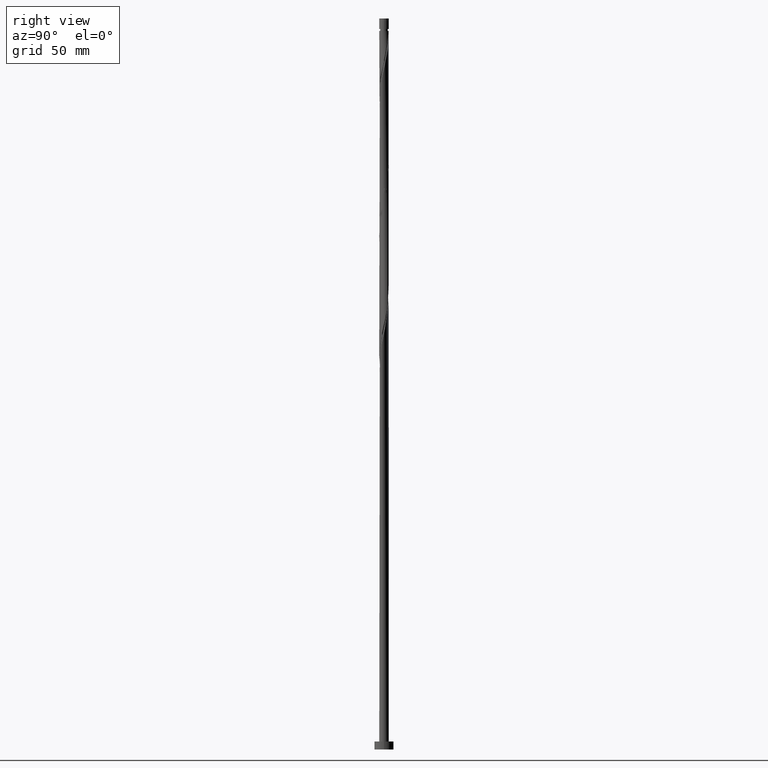
[diagram: clean part render]
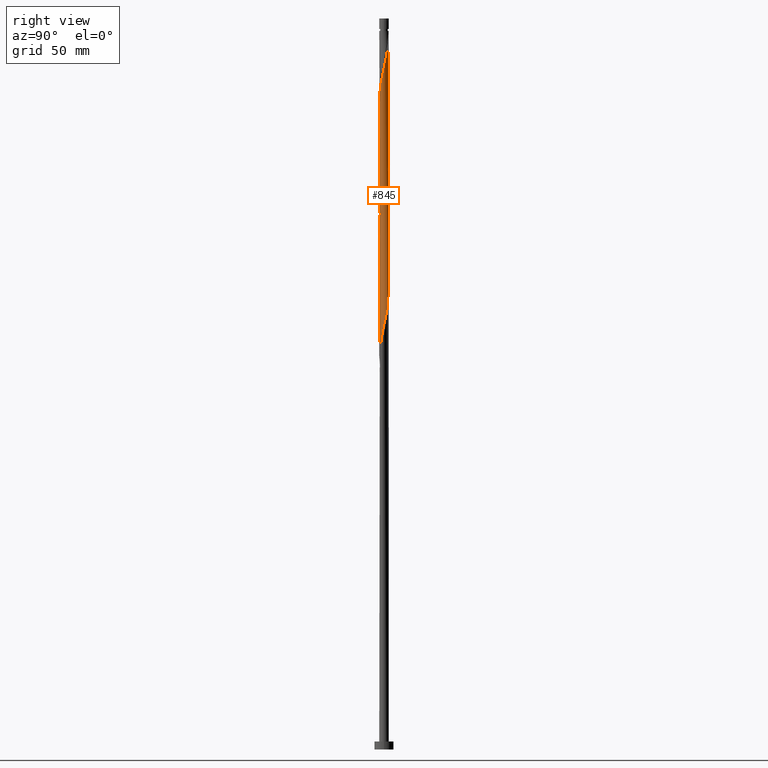
[diagram: same view with one face highlighted and labeled with its STEP entity id]
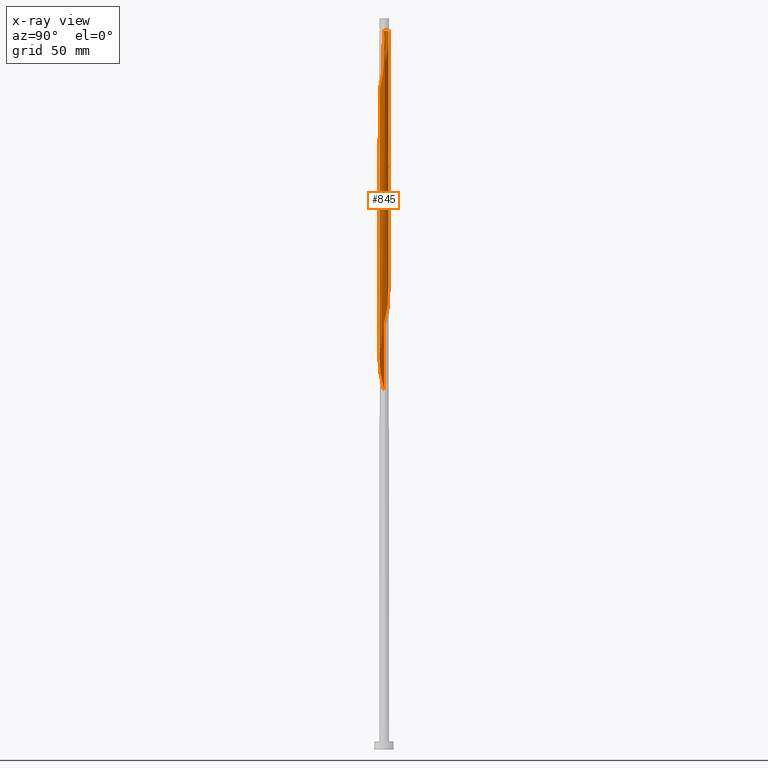
[diagram: x-ray of the same camera — body ghosted, the highlighted face saturated]
A machine part, right view. The second image highlights one B-rep face of the part: STEP entity #845.
The next image is the same camera in x-ray: the body ghosted, the highlighted face saturated — about 0% of this face is hidden behind the body in this view.
In plain terms, the highlighted cylindrical surface (bore or boss wall) has radius 3 mm, axis along (-0, -0, -1).
Its self-contained STEP definition (entity closure, byte-faithful):
#1 = CARTESIAN_POINT ( 'NONE',  ( 2.999999999999999556, 1.352208623053709741E-15, 351.2067037195775470 ) ) ;
#5 = CARTESIAN_POINT ( 'NONE',  ( 0.5969924622639761758, 2.939999999999998614, 369.3831734082475577 ) ) ;
#14 = CARTESIAN_POINT ( 'NONE',  ( -2.767041272681221020, -1.159086966227606208, 392.8206734082475577 ) ) ;
#23 = CARTESIAN_POINT ( 'NONE',  ( 1.921660071883963150, 2.322612231291373952, 362.8727567415808153 ) ) ;
#31 = CARTESIAN_POINT ( 'NONE',  ( -2.322612231291373952, 1.921660071883963150, 383.7060900749141297 ) ) ;
#37 = CARTESIAN_POINT ( 'NONE',  ( -2.664207629581484049, -1.410426430302970990, 315.9977567415808721 ) ) ;
#39 = CARTESIAN_POINT ( 'NONE',  ( 2.337855080563639554, -1.903086606305708139, 420.1644234082475577 ) ) ;
#41 = CARTESIAN_POINT ( 'NONE',  ( -2.652881170764461949, 1.431616744321172030, 386.3102567415808153 ) ) ;
#47 = CARTESIAN_POINT ( 'NONE',  ( -2.112849418798539158, 2.129757576223799909, 299.0706734082474441 ) ) ;
#55 = CARTESIAN_POINT ( 'NONE',  ( -0.01195587277277104614, -2.999976176089776736, 330.3206734082474441 ) ) ;
#66 = CARTESIAN_POINT ( 'NONE',  ( 0.8635643575599494248, -2.888176173499366506, 334.2269234082476146 ) ) ;
#83 = VERTEX_POINT ( 'NONE', #1685 ) ;
#116 = CARTESIAN_POINT ( 'NONE',  ( -0.01195587277277104614, -2.999976176089776736, 246.9873400749141581 ) ) ;
#138 = EDGE_CURVE ( 'NONE', #1658, #1646, #1227, .T. ) ;
#162 = CARTESIAN_POINT ( 'NONE',  ( -3.000000000000003553, 1.916017180564031245E-15, 387.5596430969172275 ) ) ;
#169 = CARTESIAN_POINT ( 'NONE',  ( 2.939999999999998614, -0.5969924622639760647, 348.5498400749141865 ) ) ;
#172 = CARTESIAN_POINT ( 'NONE',  ( -2.112849418798543599, -2.129757576223802129, 398.0290067415808721 ) ) ;
#173 = CARTESIAN_POINT ( 'NONE',  ( -1.903086606305704143, 2.337855080563636889, 381.1019234082476146 ) ) ;
#180 = CARTESIAN_POINT ( 'NONE',  ( 2.501031355072563578, -1.656756518304341341, 421.4665067415808153 ) ) ;
#185 = CARTESIAN_POINT ( 'NONE',  ( -2.322612231291373952, 1.921660071883963150, 300.3727567415807584 ) ) ;
#188 = CARTESIAN_POINT ( 'NONE',  ( -2.767041272681216135, 1.159086966227605542, 387.6123400749140728 ) ) ;
#192 = CARTESIAN_POINT ( 'NONE',  ( -0.5735401742041599249, 2.944664950138445647, 291.2581734082475009 ) ) ;
#201 = CARTESIAN_POINT ( 'NONE',  ( -1.676638408102567812, -2.487746701027917950, 322.5081734082475009 ) ) ;
#202 = CARTESIAN_POINT ( 'NONE',  ( 2.112849418798544043, 2.129757576223801685, 439.6956734082475009 ) ) ;
#209 = CARTESIAN_POINT ( 'NONE',  ( -1.903086606305704143, 2.337855080563636889, 297.7685900749142434 ) ) ;
#210 = CARTESIAN_POINT ( 'NONE',  ( 1.656756518304341341, 2.501031355072563578, 442.2998400749141865 ) ) ;
#222 = CARTESIAN_POINT ( 'NONE',  ( 2.501031355072560469, 1.656756518304337789, 275.6331734082474441 ) ) ;
#240 = ORIENTED_EDGE ( 'NONE', *, *, #1134, .T. ) ;
#241 = CARTESIAN_POINT ( 'NONE',  ( 2.487746701027917062, -1.676638408102569366, 260.0081734082475009 ) ) ;
#244 = DIRECTION ( 'NONE',  ( -0.000000000000000000, -0.000000000000000000, -1.000000000000000000 ) ) ;
#263 = VERTEX_POINT ( 'NONE', #907 ) ;
#264 = CARTESIAN_POINT ( 'NONE',  ( 2.322612231291373952, -1.921660071883963150, 258.7060900749142434 ) ) ;
#274 = CARTESIAN_POINT ( 'NONE',  ( -2.944664950138445647, -0.5735401742041597029, 228.7581734082474725 ) ) ;
#290 =( BOUNDED_CURVE ( )  B_SPLINE_CURVE ( 2, ( #621, #345, #1681, #1718, #1232, #1534, #188, #41, #1108, #31, #1571, #173, #312, #1240, #636, #1847, #1867, #921, #491, #762, #5, #1544, #612, #1251, #1552, #23, #1097, #1710, #470, #1077, #1690, #1223, #940, #1562, #319 ),
 .UNSPECIFIED., .F., .T. ) 
 B_SPLINE_CURVE_WITH_KNOTS ( ( 3, 2, 2, 2, 2, 2, 2, 2, 2, 2, 2, 2, 2, 2, 2, 2, 2, 3 ),
 ( 0.4295286902180871502, 0.4296875000000000000, 0.4375000000000000000, 0.4453125000000000000, 0.4531250000000000000, 0.4609375000000000000, 0.4687500000000000000, 0.4765625000000000000, 0.4843750000000000000, 0.4921875000000000000, 0.5000000000000000000, 0.5078125000000000000, 0.5156250000000000000, 0.5234375000000000000, 0.5312500000000000000, 0.5390625000000000000, 0.5468750000000000000, 0.5545286902180871502 ),
 .UNSPECIFIED. ) 
 CURVE ( )  GEOMETRIC_REPRESENTATION_ITEM ( )  RATIONAL_B_SPLINE_CURVE ( ( 0.9089165573359696548, 0.9090019243628744139, 0.9090909090909662371, 0.9047133878838722332, 0.9090909090909662371, 0.9047133878838722332, 0.9090909090909662371, 0.9047133878838722332, 0.9090909090909662371, 0.9047133878838722332, 0.9090909090909662371, 0.9047133878838722332, 0.9090909090909662371, 0.9047133878838722332, 0.9090909090909662371, 0.9047133878838722332, 0.9090909090909662371, 0.9047133878838722332, 0.9090909090909662371, 0.9047133878838722332, 0.9090909090909662371, 0.9047133878838722332, 0.9090909090909662371, 0.9047133878838722332, 0.9090909090909662371, 0.9047133878838722332, 0.9090909090909662371, 0.9047133878838722332, 0.9090909090909662371, 0.9047133878838722332, 0.9090909090909662371, 0.9047133878838722332, 0.9090909090909662371, 0.9048023726119640564, 0.9089165573359696548 ) ) 
 REPRESENTATION_ITEM ( '' )  );
#310 = CARTESIAN_POINT ( 'NONE',  ( -2.322612231291378393, -1.921660071883964704, 396.7269234082475009 ) ) ;
#312 = CARTESIAN_POINT ( 'NONE',  ( -1.656756518304337789, 2.501031355072560469, 379.7998400749140728 ) ) ;
#316 = DIRECTION ( 'NONE',  ( -0.000000000000000000, -0.000000000000000000, -1.000000000000000000 ) ) ;
#319 = CARTESIAN_POINT ( 'NONE',  ( 2.999999999999999556, 1.352208623053709741E-15, 351.2067037195775470 ) ) ;
#327 = CARTESIAN_POINT ( 'NONE',  ( 1.431616744321172696, -2.652881170764466390, 414.9560900749141297 ) ) ;
#335 = CARTESIAN_POINT ( 'NONE',  ( 2.999976176089781621, 0.01195587277276968438, 429.2790067415807584 ) ) ;
#342 = CARTESIAN_POINT ( 'NONE',  ( -2.501031355072560469, -1.656756518304337789, 317.2998400749142434 ) ) ;
#343 = CARTESIAN_POINT ( 'NONE',  ( 0.3074277363939120211, -2.998798625402031348, 409.7477567415808153 ) ) ;
#345 = CARTESIAN_POINT ( 'NONE',  ( -2.999999999999999556, 0.005977960122782757964, 392.8470168317271032 ) ) ;
#353 = CARTESIAN_POINT ( 'NONE',  ( 2.112849418798539158, -2.129757576223799465, 340.7373400749142434 ) ) ;
#361 = CARTESIAN_POINT ( 'NONE',  ( 1.410426430302970990, -2.664207629581484049, 336.8310900749141865 ) ) ;
#363 = LINE ( 'NONE', #1156, #1962 ) ;
#367 = VERTEX_POINT ( 'NONE', #926 ) ;
#371 = CARTESIAN_POINT ( 'NONE',  ( 2.337855080563637777, 1.903086606305703032, 276.9352567415808721 ) ) ;
#379 = CARTESIAN_POINT ( 'NONE',  ( -1.921660071883963150, -2.322612231291373952, 321.2060900749141297 ) ) ;
#381 = CARTESIAN_POINT ( 'NONE',  ( -0.5969924622640679912, 2.940000000000801084, 452.7165067415808153 ) ) ;
#402 = CARTESIAN_POINT ( 'NONE',  ( 0.5735401742041595918, -2.944664950138446091, 249.5915067415808153 ) ) ;
#411 = LINE ( 'NONE', #732, #450 ) ;
#425 = CARTESIAN_POINT ( 'NONE',  ( -2.501031355072560469, -1.656756518304337789, 233.9665067415808153 ) ) ;
#432 = EDGE_CURVE ( 'NONE', #1956, #367, #1303, .T. ) ;
#450 = VECTOR ( 'NONE', #1347, 1000.000000000000000 ) ;
#468 = CARTESIAN_POINT ( 'NONE',  ( -2.487746701027922391, -1.676638408102569366, 395.4248400749142434 ) ) ;
#470 = CARTESIAN_POINT ( 'NONE',  ( 2.501031355072560469, 1.656756518304337789, 358.9665067415808153 ) ) ;
#477 = CARTESIAN_POINT ( 'NONE',  ( 3.001153726777531450, -0.2835159908483711466, 427.9769234082475009 ) ) ;
#491 = CARTESIAN_POINT ( 'NONE',  ( 0.01195587277277136359, 2.999976176089776736, 371.9873400749141865 ) ) ;
#498 = CARTESIAN_POINT ( 'NONE',  ( -2.998798625402027351, 0.3074277363939126317, 308.1852567415808153 ) ) ;
#500 = CARTESIAN_POINT ( 'NONE',  ( -2.940000000000004388, -0.5969924622639758427, 390.2165067415808153 ) ) ;
#507 = CARTESIAN_POINT ( 'NONE',  ( 1.159086966227606430, 2.767041272681216135, 283.4456734082474441 ) ) ;
#518 = CARTESIAN_POINT ( 'NONE',  ( -2.337855080563637333, -1.903086606305704365, 318.6019234082475577 ) ) ;
#526 = CARTESIAN_POINT ( 'NONE',  ( 1.431616744321172474, 2.652881170764461505, 282.1435900749141297 ) ) ;
#527 = CARTESIAN_POINT ( 'NONE',  ( -0.3074277363939257324, 2.998798625402031792, 451.4144234082475577 ) ) ;
#533 = CARTESIAN_POINT ( 'NONE',  ( 0.8865571881340380545, 2.881201374597971654, 284.7477567415808153 ) ) ;
#534 = CARTESIAN_POINT ( 'NONE',  ( 0.5735401742041633666, 2.944664950138450976, 447.5081734082476146 ) ) ;
#554 = CARTESIAN_POINT ( 'NONE',  ( 1.136995393931459208, -2.776191901540425278, 252.1956734082475009 ) ) ;
#575 = CARTESIAN_POINT ( 'NONE',  ( -1.431616744321172030, -2.652881170764461505, 240.4769234082474725 ) ) ;
#596 = VERTEX_POINT ( 'NONE', #1371 ) ;
#609 = CARTESIAN_POINT ( 'NONE',  ( 2.881201374597976095, 0.8865571881340377214, 433.1852567415807584 ) ) ;
#612 = CARTESIAN_POINT ( 'NONE',  ( 1.159086966227606430, 2.767041272681216135, 366.7790067415808721 ) ) ;
#619 = CARTESIAN_POINT ( 'NONE',  ( 1.159086966227606652, -2.767041272681221020, 413.6540067415809290 ) ) ;
#621 = CARTESIAN_POINT ( 'NONE',  ( -2.999999999999999556, -1.053063917333350848E-15, 392.8733703862443463 ) ) ;
#627 = CARTESIAN_POINT ( 'NONE',  ( -0.2835159908483709801, -3.001153726777531450, 407.1435900749141865 ) ) ;
#635 = CARTESIAN_POINT ( 'NONE',  ( 2.776191901540429718, -1.136995393931462539, 424.0706734082475577 ) ) ;
#636 = CARTESIAN_POINT ( 'NONE',  ( -1.136995393931460097, 2.776191901540424833, 377.1956734082475009 ) ) ;
#645 = CARTESIAN_POINT ( 'NONE',  ( 2.664207629581486714, -1.410426430302975653, 422.7685900749140728 ) ) ;
#648 = DIRECTION ( 'NONE',  ( -0.000000000000000000, -0.000000000000000000, -1.000000000000000000 ) ) ;
#654 = CARTESIAN_POINT ( 'NONE',  ( 2.322612231291373952, -1.921660071883963150, 342.0394234082475009 ) ) ;
#663 = CARTESIAN_POINT ( 'NONE',  ( -2.999976176089776736, 0.01195587277277147288, 309.4873400749141297 ) ) ;
#674 = CARTESIAN_POINT ( 'NONE',  ( 0.5735401742041595918, -2.944664950138446091, 332.9248400749141865 ) ) ;
#685 = CARTESIAN_POINT ( 'NONE',  ( 2.888176173499366506, 0.8635643575599494248, 271.7269234082475009 ) ) ;
#703 = AXIS2_PLACEMENT_3D ( 'NONE', #781, #648, #1408 ) ;
#726 = CARTESIAN_POINT ( 'NONE',  ( -0.3074277363939126873, -2.998798625402027351, 245.6852567415807584 ) ) ;
#728 = CARTESIAN_POINT ( 'NONE',  ( -2.999999999999957367, 0.000000000000000000, 452.7165067415808153 ) ) ;
#732 = CARTESIAN_POINT ( 'NONE',  ( -3.000000000000000444, 0.000000000000000000, 460.5299999999999727 ) ) ;
#736 = CARTESIAN_POINT ( 'NONE',  ( -1.159086966227606208, -2.767041272681216135, 241.7790067415808153 ) ) ;
#748 = CARTESIAN_POINT ( 'NONE',  ( -3.000000000000000444, 0.000000000000000000, 460.5299999999999727 ) ) ;
#752 = ORIENTED_EDGE ( 'NONE', *, *, #138, .F. ) ;
#761 = EDGE_CURVE ( 'NONE', #1646, #1956, #290, .T. ) ;
#762 = CARTESIAN_POINT ( 'NONE',  ( 0.3074277363939126873, 2.998798625402027351, 370.6852567415808153 ) ) ;
#766 = CARTESIAN_POINT ( 'NONE',  ( 2.999976176089776736, -0.01195587277277115543, 351.1540067415806448 ) ) ;
#769 = CARTESIAN_POINT ( 'NONE',  ( -2.881201374597975651, -0.8865571881340392757, 391.5185900749141865 ) ) ;
#780 = CARTESIAN_POINT ( 'NONE',  ( -1.136995393931462539, -2.776191901540429718, 403.2373400749140728 ) ) ;
#781 = CARTESIAN_POINT ( 'NONE',  ( 0.000000000000000000, 0.000000000000000000, 460.5299999999999727 ) ) ;
#784 = CARTESIAN_POINT ( 'NONE',  ( 2.881201374597971654, -0.8865571881340379434, 347.2477567415808721 ) ) ;
#785 = EDGE_CURVE ( 'NONE', #1658, #263, #1726, .T. ) ;
#790 = DIRECTION ( 'NONE',  ( -0.000000000000000000, -0.000000000000000000, -1.000000000000000000 ) ) ;
#795 = CARTESIAN_POINT ( 'NONE',  ( -0.2835159908483700919, 3.001153726777527453, 289.9560900749141865 ) ) ;
#797 = CARTESIAN_POINT ( 'NONE',  ( -3.000000000000003997, -0.005977960122773548317, 387.5859966514345274 ) ) ;
#805 = CARTESIAN_POINT ( 'NONE',  ( 0.01195587277277136359, 2.999976176089776736, 288.6540067415808153 ) ) ;
#806 = CARTESIAN_POINT ( 'NONE',  ( 1.921660071883964704, -2.322612231291378393, 417.5602567415808153 ) ) ;
#813 = CARTESIAN_POINT ( 'NONE',  ( 1.136995393931459208, -2.776191901540425278, 335.5290067415808153 ) ) ;
#827 = CARTESIAN_POINT ( 'NONE',  ( 2.487746701027917062, -1.676638408102569366, 343.3415067415808153 ) ) ;
#837 = CARTESIAN_POINT ( 'NONE',  ( 2.664207629581483605, 1.410426430302971657, 274.3310900749142434 ) ) ;
#845 = ADVANCED_FACE ( 'NONE', ( #1420 ), #1837, .T. ) ;
#846 = CARTESIAN_POINT ( 'NONE',  ( -2.337855080563637333, -1.903086606305704365, 235.2685900749141581 ) ) ;
#849 = CARTESIAN_POINT ( 'NONE',  ( 1.136995393931462539, 2.776191901540429718, 444.9040067415808721 ) ) ;
#857 = CARTESIAN_POINT ( 'NONE',  ( 1.903086606305703032, -2.337855080563637777, 256.1019234082474441 ) ) ;
#880 = CARTESIAN_POINT ( 'NONE',  ( 2.939999999999998614, -0.5969924622639760647, 265.2165067415808153 ) ) ;
#891 = CARTESIAN_POINT ( 'NONE',  ( -3.000000000000000444, -0.2894394447869482745, 227.4826838249937566 ) ) ;
#907 = CARTESIAN_POINT ( 'NONE',  ( -0.5969924622640679912, 2.940000000000801084, 452.7165067415808153 ) ) ;
#921 = CARTESIAN_POINT ( 'NONE',  ( -0.2835159908483700919, 3.001153726777527453, 373.2894234082475577 ) ) ;
#926 = CARTESIAN_POINT ( 'NONE',  ( -2.999999999999999556, -1.053063917333350848E-15, 226.2067037195776891 ) ) ;
#930 = VECTOR ( 'NONE', #316, 1000.000000000000000 ) ;
#931 = CARTESIAN_POINT ( 'NONE',  ( 0.000000000000000000, 0.000000000000000000, 452.7165067415808153 ) ) ;
#939 = CARTESIAN_POINT ( 'NONE',  ( -2.652881170764465946, -1.431616744321172918, 394.1227567415808721 ) ) ;
#940 = CARTESIAN_POINT ( 'NONE',  ( 2.944664950138445647, 0.5735401742041607021, 353.7581734082474441 ) ) ;
#948 = CARTESIAN_POINT ( 'NONE',  ( 2.940000000000004388, 0.5969924622639755096, 431.8831734082475009 ) ) ;
#953 = CARTESIAN_POINT ( 'NONE',  ( -1.136995393931460097, 2.776191901540424833, 293.8623400749142434 ) ) ;
#955 = CARTESIAN_POINT ( 'NONE',  ( -1.903086606305708139, -2.337855080563639554, 399.3310900749141297 ) ) ;
#964 = CARTESIAN_POINT ( 'NONE',  ( -2.487746701027917950, 1.676638408102567590, 301.6748400749141297 ) ) ;
#973 = CARTESIAN_POINT ( 'NONE',  ( -2.652881170764461949, 1.431616744321172030, 302.9769234082475009 ) ) ;
#980 = CARTESIAN_POINT ( 'NONE',  ( -2.881201374597971210, 0.8865571881340387206, 305.5810900749141297 ) ) ;
#988 = CARTESIAN_POINT ( 'NONE',  ( -2.664207629581484049, -1.410426430302970990, 232.6644234082475577 ) ) ;
#1000 = CARTESIAN_POINT ( 'NONE',  ( -2.999999999999999556, -1.053063917333350651E-15, 226.2067037195776891 ) ) ;
#1011 = CARTESIAN_POINT ( 'NONE',  ( 2.881201374597971654, -0.8865571881340379434, 263.9144234082475009 ) ) ;
#1023 = CARTESIAN_POINT ( 'NONE',  ( 2.999976176089776736, -0.01195587277277115543, 267.8206734082475009 ) ) ;
#1026 = ORIENTED_EDGE ( 'NONE', *, *, #1392, .F. ) ;
#1077 = CARTESIAN_POINT ( 'NONE',  ( 2.664207629581483605, 1.410426430302971657, 357.6644234082475577 ) ) ;
#1085 = CARTESIAN_POINT ( 'NONE',  ( 2.998798625402031348, 0.3074277363939131869, 430.5810900749141297 ) ) ;
#1095 = CARTESIAN_POINT ( 'NONE',  ( -1.656756518304340675, -2.501031355072563578, 400.6331734082475577 ) ) ;
#1097 = CARTESIAN_POINT ( 'NONE',  ( 2.129757576223799465, 2.112849418798539158, 361.5706734082475009 ) ) ;
#1103 = CARTESIAN_POINT ( 'NONE',  ( -1.410426430302971212, 2.664207629581483605, 295.1644234082476146 ) ) ;
#1105 =( BOUNDED_CURVE ( )  B_SPLINE_CURVE ( 2, ( #162, #797, #1716, #1680, #500, #769, #14, #939, #468, #310, #172, #955, #1095, #1708, #780, #1418, #1387, #627, #1407, #343, #1551, #1239, #619, #327, #1231, #806, #1845, #39, #180, #645, #635, #1250, #1855, #477, #335, #1085, #948, #609, #1259, #1569, #1427, #1221, #202, #1912, #210, #1753, #849, #1765, #534, #1449, #1300, #527, #381 ),
 .UNSPECIFIED., .F., .T. ) 
 B_SPLINE_CURVE_WITH_KNOTS ( ( 3, 2, 2, 2, 2, 2, 2, 2, 2, 2, 2, 2, 2, 2, 2, 2, 2, 2, 2, 2, 2, 2, 2, 2, 2, 2, 3 ),
 ( 0.5545286902180869282, 0.5546875000000000000, 0.5625000000000000000, 0.5703125000000000000, 0.5781250000000000000, 0.5859375000000000000, 0.5937500000000001110, 0.6015625000000001110, 0.6093750000000001110, 0.6171875000000001110, 0.6250000000000001110, 0.6328125000000001110, 0.6406250000000001110, 0.6484375000000001110, 0.6562500000000002220, 0.6640625000000002220, 0.6718750000000002220, 0.6796875000000002220, 0.6875000000000002220, 0.6953125000000002220, 0.7031250000000002220, 0.7109375000000002220, 0.7187500000000003331, 0.7265625000000003331, 0.7343750000000003331, 0.7421875000000003331, 0.7500000000000003331 ),
 .UNSPECIFIED. ) 
 CURVE ( )  GEOMETRIC_REPRESENTATION_ITEM ( )  RATIONAL_B_SPLINE_CURVE ( ( 0.9089165573359754280, 0.9090019243628802981, 0.9090909090909722323, 0.9047133878838782284, 0.9090909090909722323, 0.9047133878838782284, 0.9090909090909722323, 0.9047133878838782284, 0.9090909090909722323, 0.9047133878838782284, 0.9090909090909722323, 0.9047133878838782284, 0.9090909090909722323, 0.9047133878838782284, 0.9090909090909722323, 0.9047133878838782284, 0.9090909090909722323, 0.9047133878838782284, 0.9090909090909722323, 0.9047133878838782284, 0.9090909090909722323, 0.9047133878838782284, 0.9090909090909722323, 0.9047133878838782284, 0.9090909090909722323, 0.9047133878838782284, 0.9090909090909722323, 0.9047133878838782284, 0.9090909090909722323, 0.9047133878838782284, 0.9090909090909722323, 0.9047133878838782284, 0.9090909090909722323, 0.9047133878838782284, 0.9090909090909722323, 0.9047133878838782284, 0.9090909090909722323, 0.9047133878838782284, 0.9090909090909722323, 0.9047133878838782284, 0.9090909090909722323, 0.9047133878838782284, 0.9090909090909722323, 0.9047133878838782284, 0.9090909090909722323, 0.9047133878838782284, 0.9090909090909722323, 0.9047133878838782284, 0.9090909090909722323, 0.9047133878838782284, 0.9090909090909722323, 0.9047133878838780063, 0.9090909090909724544 ) ) 
 REPRESENTATION_ITEM ( '' )  );
#1108 = CARTESIAN_POINT ( 'NONE',  ( -2.487746701027917950, 1.676638408102567590, 385.0081734082474441 ) ) ;
#1114 = CARTESIAN_POINT ( 'NONE',  ( -2.129757576223799465, -2.112849418798539158, 319.9040067415809290 ) ) ;
#1123 = CARTESIAN_POINT ( 'NONE',  ( -0.5969924622639757317, -2.939999999999998614, 327.7165067415808153 ) ) ;
#1132 = CARTESIAN_POINT ( 'NONE',  ( 1.921660071883963150, 2.322612231291373952, 279.5394234082475009 ) ) ;
#1134 = EDGE_CURVE ( 'NONE', #83, #367, #411, .T. ) ;
#1156 = CARTESIAN_POINT ( 'NONE',  ( 3.000000000000000444, 3.673940397442060361E-16, 460.5299999999999727 ) ) ;
#1175 = ORIENTED_EDGE ( 'NONE', *, *, #761, .F. ) ;
#1176 = CARTESIAN_POINT ( 'NONE',  ( 2.767041272681216135, -1.159086966227606208, 262.6123400749141865 ) ) ;
#1187 = CARTESIAN_POINT ( 'NONE',  ( 1.656756518304337789, -2.501031355072560913, 254.7998400749141865 ) ) ;
#1197 = ORIENTED_EDGE ( 'NONE', *, *, #1392, .T. ) ;
#1216 = CARTESIAN_POINT ( 'NONE',  ( 2.999999999999999556, -0.005977960122782449183, 351.1803501650603039 ) ) ;
#1221 = CARTESIAN_POINT ( 'NONE',  ( 2.322612231291378393, 1.921660071883964704, 438.3935900749141297 ) ) ;
#1223 = CARTESIAN_POINT ( 'NONE',  ( 2.888176173499366506, 0.8635643575599494248, 355.0602567415809290 ) ) ;
#1227 = LINE ( 'NONE', #748, #930 ) ;
#1231 = CARTESIAN_POINT ( 'NONE',  ( 1.676638408102569366, -2.487746701027922835, 416.2581734082476146 ) ) ;
#1232 = CARTESIAN_POINT ( 'NONE',  ( -2.939999999999998614, 0.5969924622639757317, 390.2165067415808721 ) ) ;
#1239 = CARTESIAN_POINT ( 'NONE',  ( 0.8865571881340392757, -2.881201374597975651, 412.3519234082475577 ) ) ;
#1240 = CARTESIAN_POINT ( 'NONE',  ( -1.410426430302971212, 2.664207629581483605, 378.4977567415809290 ) ) ;
#1250 = CARTESIAN_POINT ( 'NONE',  ( 2.888176173499371391, -0.8635643575599518673, 425.3727567415808721 ) ) ;
#1251 = CARTESIAN_POINT ( 'NONE',  ( 1.431616744321172474, 2.652881170764461505, 365.4769234082475009 ) ) ;
#1257 = CARTESIAN_POINT ( 'NONE',  ( -3.001153726777527897, -0.2835159908483694258, 310.7894234082475577 ) ) ;
#1259 = CARTESIAN_POINT ( 'NONE',  ( 2.767041272681221020, 1.159086966227606652, 434.4873400749143002 ) ) ;
#1276 = CARTESIAN_POINT ( 'NONE',  ( -2.939999999999998614, 0.5969924622639757317, 306.8831734082475009 ) ) ;
#1283 = AXIS2_PLACEMENT_3D ( 'NONE', #931, #790, #1856 ) ;
#1284 = EDGE_LOOP ( 'NONE', ( #752, #1976, #1965, #240, #1412, #1026, #1197, #1175 ) ) ;
#1287 = CARTESIAN_POINT ( 'NONE',  ( -0.8635643575599494248, 2.888176173499366506, 292.5602567415807584 ) ) ;
#1297 = CARTESIAN_POINT ( 'NONE',  ( 2.944664950138445647, 0.5735401742041607021, 270.4248400749142434 ) ) ;
#1300 = CARTESIAN_POINT ( 'NONE',  ( -0.01195587277276957683, 2.999976176089781621, 450.1123400749142434 ) ) ;
#1303 =( BOUNDED_CURVE ( )  B_SPLINE_CURVE ( 2, ( #1, #1216, #766, #1538, #169, #784, #1566, #1891, #827, #654, #353, #1909, #1446, #361, #813, #66, #674, #1436, #55, #1751, #1123, #1415, #1734, #1558, #201, #379, #1114, #518, #342, #37, #1881, #1900, #1584, #1257, #663, #498, #1276, #980, #1714, #973, #964, #185, #47, #209, #1724, #1103, #953, #1287, #192, #795, #805, #1426, #1576, #533, #507, #526, #1590, #1132, #1744, #371, #222, #837, #1456, #685, #1297, #1944, #1023, #1786, #880, #1011, #1176, #1635, #241, #264, #1492, #857, #1187, #1933, #554, #1774, #402, #1501, #116, #726, #1342, #1953, #736, #575, #1810, #1798, #1351, #846, #425, #988, #1647, #1598, #274, #891, #1000 ),
 .UNSPECIFIED., .F., .T. ) 
 B_SPLINE_CURVE_WITH_KNOTS ( ( 3, 2, 2, 2, 2, 2, 2, 2, 2, 2, 2, 2, 2, 2, 2, 2, 2, 2, 2, 2, 2, 2, 2, 2, 2, 2, 2, 2, 2, 2, 2, 2, 2, 2, 2, 2, 2, 2, 2, 2, 2, 2, 2, 2, 2, 2, 2, 2, 2, 3 ),
 ( 0.5545286902180871502, 0.5546875000000000000, 0.5625000000000000000, 0.5703125000000000000, 0.5781250000000000000, 0.5859375000000000000, 0.5937500000000000000, 0.6015625000000000000, 0.6093750000000000000, 0.6171875000000000000, 0.6250000000000000000, 0.6328125000000000000, 0.6406250000000000000, 0.6484375000000000000, 0.6562500000000000000, 0.6640625000000000000, 0.6718750000000000000, 0.6796875000000000000, 0.6875000000000000000, 0.6953125000000000000, 0.7031250000000000000, 0.7109375000000000000, 0.7187500000000000000, 0.7265625000000000000, 0.7343750000000000000, 0.7421875000000000000, 0.7500000000000000000, 0.7578125000000000000, 0.7656250000000000000, 0.7734375000000000000, 0.7812500000000000000, 0.7890625000000000000, 0.7968750000000000000, 0.8046875000000000000, 0.8125000000000000000, 0.8203125000000000000, 0.8281250000000000000, 0.8359375000000000000, 0.8437500000000000000, 0.8515625000000000000, 0.8593750000000000000, 0.8671875000000000000, 0.8750000000000000000, 0.8828125000000000000, 0.8906250000000000000, 0.8984375000000000000, 0.9062500000000000000, 0.9140625000000000000, 0.9218750000000000000, 0.9295286902180870392 ),
 .UNSPECIFIED. ) 
 CURVE ( )  GEOMETRIC_REPRESENTATION_ITEM ( )  RATIONAL_B_SPLINE_CURVE ( ( 0.9089165573359696548, 0.9090019243628744139, 0.9090909090909662371, 0.9047133878838722332, 0.9090909090909662371, 0.9047133878838722332, 0.9090909090909662371, 0.9047133878838722332, 0.9090909090909662371, 0.9047133878838722332, 0.9090909090909662371, 0.9047133878838722332, 0.9090909090909662371, 0.9047133878838722332, 0.9090909090909662371, 0.9047133878838722332, 0.9090909090909662371, 0.9047133878838722332, 0.9090909090909662371, 0.9047133878838722332, 0.9090909090909662371, 0.9047133878838722332, 0.9090909090909662371, 0.9047133878838722332, 0.9090909090909662371, 0.9047133878838722332, 0.9090909090909662371, 0.9047133878838722332, 0.9090909090909662371, 0.9047133878838722332, 0.9090909090909662371, 0.9047133878838722332, 0.9090909090909662371, 0.9047133878838722332, 0.9090909090909662371, 0.9047133878838722332, 0.9090909090909662371, 0.9047133878838722332, 0.9090909090909662371, 0.9047133878838722332, 0.9090909090909662371, 0.9047133878838722332, 0.9090909090909662371, 0.9047133878838722332, 0.9090909090909662371, 0.9047133878838722332, 0.9090909090909662371, 0.9047133878838722332, 0.9090909090909662371, 0.9047133878838722332, 0.9090909090909662371, 0.9047133878838722332, 0.9090909090909662371, 0.9047133878838722332, 0.9090909090909662371, 0.9047133878838722332, 0.9090909090909662371, 0.9047133878838722332, 0.9090909090909662371, 0.9047133878838722332, 0.9090909090909662371, 0.9047133878838722332, 0.9090909090909662371, 0.9047133878838722332, 0.9090909090909662371, 0.9047133878838722332, 0.9090909090909662371, 0.9047133878838722332, 0.9090909090909662371, 0.9047133878838722332, 0.9090909090909662371, 0.9047133878838722332, 0.9090909090909662371, 0.9047133878838722332, 0.9090909090909662371, 0.9047133878838722332, 0.9090909090909662371, 0.9047133878838722332, 0.9090909090909662371, 0.9047133878838722332, 0.9090909090909662371, 0.9047133878838722332, 0.9090909090909662371, 0.9047133878838722332, 0.9090909090909662371, 0.9047133878838722332, 0.9090909090909662371, 0.9047133878838722332, 0.9090909090909662371, 0.9047133878838722332, 0.9090909090909662371, 0.9047133878838722332, 0.9090909090909662371, 0.9047133878838722332, 0.9090909090909662371, 0.9047133878838722332, 0.9090909090909662371, 0.9048023726119640564, 0.9089165573359695438 ) ) 
 REPRESENTATION_ITEM ( '' )  );
#1342 = CARTESIAN_POINT ( 'NONE',  ( -0.5969924622639757317, -2.939999999999998614, 244.3831734082474725 ) ) ;
#1347 = DIRECTION ( 'NONE',  ( -0.000000000000000000, -0.000000000000000000, -1.000000000000000000 ) ) ;
#1351 = CARTESIAN_POINT ( 'NONE',  ( -2.129757576223799465, -2.112849418798539158, 236.5706734082474725 ) ) ;
#1353 = EDGE_CURVE ( 'NONE', #83, #263, #1105, .T. ) ;
#1371 = CARTESIAN_POINT ( 'NONE',  ( 3.000000000000000444, 3.673940397442060361E-16, 452.7165067415808153 ) ) ;
#1387 = CARTESIAN_POINT ( 'NONE',  ( -0.5735401742041614792, -2.944664950138450976, 405.8415067415808721 ) ) ;
#1392 = EDGE_CURVE ( 'NONE', #596, #1956, #363, .T. ) ;
#1407 = CARTESIAN_POINT ( 'NONE',  ( 0.01195587277276988908, -2.999976176089781621, 408.4456734082476146 ) ) ;
#1408 = DIRECTION ( 'NONE',  ( -1.000000000000000000, 0.000000000000000000, 0.000000000000000000 ) ) ;
#1412 = ORIENTED_EDGE ( 'NONE', *, *, #432, .F. ) ;
#1415 = CARTESIAN_POINT ( 'NONE',  ( -0.8865571881340388316, -2.881201374597971210, 326.4144234082475577 ) ) ;
#1418 = CARTESIAN_POINT ( 'NONE',  ( -0.8635643575599518673, -2.888176173499371391, 404.5394234082475009 ) ) ;
#1420 = FACE_OUTER_BOUND ( 'NONE', #1284, .T. ) ;
#1426 = CARTESIAN_POINT ( 'NONE',  ( 0.3074277363939126873, 2.998798625402027351, 287.3519234082476146 ) ) ;
#1427 = CARTESIAN_POINT ( 'NONE',  ( 2.487746701027921947, 1.676638408102570477, 437.0915067415808721 ) ) ;
#1436 = CARTESIAN_POINT ( 'NONE',  ( 0.2835159908483692592, -3.001153726777527453, 331.6227567415807584 ) ) ;
#1446 = CARTESIAN_POINT ( 'NONE',  ( 1.656756518304337789, -2.501031355072560913, 338.1331734082475009 ) ) ;
#1449 = CARTESIAN_POINT ( 'NONE',  ( 0.2835159908483712576, 3.001153726777531450, 448.8102567415808153 ) ) ;
#1456 = CARTESIAN_POINT ( 'NONE',  ( 2.776191901540424833, 1.136995393931459208, 273.0290067415808153 ) ) ;
#1492 = CARTESIAN_POINT ( 'NONE',  ( 2.112849418798539158, -2.129757576223799465, 257.4040067415808153 ) ) ;
#1501 = CARTESIAN_POINT ( 'NONE',  ( 0.2835159908483692592, -3.001153726777527453, 248.2894234082475577 ) ) ;
#1534 = CARTESIAN_POINT ( 'NONE',  ( -2.881201374597971210, 0.8865571881340387206, 388.9144234082475009 ) ) ;
#1538 = CARTESIAN_POINT ( 'NONE',  ( 2.998798625402026463, -0.3074277363939142416, 349.8519234082475009 ) ) ;
#1544 = CARTESIAN_POINT ( 'NONE',  ( 0.8865571881340380545, 2.881201374597971654, 368.0810900749141865 ) ) ;
#1551 = CARTESIAN_POINT ( 'NONE',  ( 0.5969924622639757317, -2.940000000000004388, 411.0498400749141865 ) ) ;
#1552 = CARTESIAN_POINT ( 'NONE',  ( 1.676638408102569366, 2.487746701027917062, 364.1748400749141865 ) ) ;
#1558 = CARTESIAN_POINT ( 'NONE',  ( -1.431616744321172030, -2.652881170764461505, 323.8102567415808153 ) ) ;
#1562 = CARTESIAN_POINT ( 'NONE',  ( 3.000000000000000444, 0.2894394447869440001, 352.4826838249937282 ) ) ;
#1566 = CARTESIAN_POINT ( 'NONE',  ( 2.767041272681216135, -1.159086966227606208, 345.9456734082475009 ) ) ;
#1569 = CARTESIAN_POINT ( 'NONE',  ( 2.652881170764466390, 1.431616744321172696, 435.7894234082475009 ) ) ;
#1571 = CARTESIAN_POINT ( 'NONE',  ( -2.112849418798539158, 2.129757576223799909, 382.4040067415807584 ) ) ;
#1576 = CARTESIAN_POINT ( 'NONE',  ( 0.5969924622639761758, 2.939999999999998614, 286.0498400749141297 ) ) ;
#1584 = CARTESIAN_POINT ( 'NONE',  ( -2.944664950138445647, -0.5735401742041597029, 312.0915067415808721 ) ) ;
#1590 = CARTESIAN_POINT ( 'NONE',  ( 1.676638408102569366, 2.487746701027917062, 280.8415067415808153 ) ) ;
#1598 = CARTESIAN_POINT ( 'NONE',  ( -2.888176173499366506, -0.8635643575599496469, 230.0602567415808437 ) ) ;
#1623 = CARTESIAN_POINT ( 'NONE',  ( -2.999999999999999556, -1.053063917333350848E-15, 392.8733703862443463 ) ) ;
#1635 = CARTESIAN_POINT ( 'NONE',  ( 2.652881170764461505, -1.431616744321172252, 261.3102567415808153 ) ) ;
#1646 = VERTEX_POINT ( 'NONE', #1623 ) ;
#1647 = CARTESIAN_POINT ( 'NONE',  ( -2.776191901540424389, -1.136995393931459208, 231.3623400749141581 ) ) ;
#1658 = VERTEX_POINT ( 'NONE', #728 ) ;
#1680 = CARTESIAN_POINT ( 'NONE',  ( -2.998798625402031348, -0.3074277363939121321, 388.9144234082475009 ) ) ;
#1681 = CARTESIAN_POINT ( 'NONE',  ( -2.999976176089776736, 0.01195587277277147288, 392.8206734082475009 ) ) ;
#1685 = CARTESIAN_POINT ( 'NONE',  ( -3.000000000000003553, 1.916017180564031245E-15, 387.5596430969172275 ) ) ;
#1690 = CARTESIAN_POINT ( 'NONE',  ( 2.776191901540424833, 1.136995393931459208, 356.3623400749141865 ) ) ;
#1708 = CARTESIAN_POINT ( 'NONE',  ( -1.410426430302974099, -2.664207629581487602, 401.9352567415807584 ) ) ;
#1710 = CARTESIAN_POINT ( 'NONE',  ( 2.337855080563637777, 1.903086606305703032, 360.2685900749142434 ) ) ;
#1714 = CARTESIAN_POINT ( 'NONE',  ( -2.767041272681216135, 1.159086966227605542, 304.2790067415807584 ) ) ;
#1716 = CARTESIAN_POINT ( 'NONE',  ( -2.999976176089781177, -0.01195587277277063848, 387.6123400749141297 ) ) ;
#1718 = CARTESIAN_POINT ( 'NONE',  ( -2.998798625402027351, 0.3074277363939126317, 391.5185900749140728 ) ) ;
#1724 = CARTESIAN_POINT ( 'NONE',  ( -1.656756518304337789, 2.501031355072560469, 296.4665067415808153 ) ) ;
#1726 = CIRCLE ( 'NONE', #1283, 2.999999999999957367 ) ;
#1734 = CARTESIAN_POINT ( 'NONE',  ( -1.159086966227606208, -2.767041272681216135, 325.1123400749141865 ) ) ;
#1744 = CARTESIAN_POINT ( 'NONE',  ( 2.129757576223799465, 2.112849418798539158, 278.2373400749141297 ) ) ;
#1751 = CARTESIAN_POINT ( 'NONE',  ( -0.3074277363939126873, -2.998798625402027351, 329.0185900749141865 ) ) ;
#1753 = CARTESIAN_POINT ( 'NONE',  ( 1.410426430302975653, 2.664207629581485826, 443.6019234082476714 ) ) ;
#1765 = CARTESIAN_POINT ( 'NONE',  ( 0.8635643575599523114, 2.888176173499370947, 446.2060900749141297 ) ) ;
#1774 = CARTESIAN_POINT ( 'NONE',  ( 0.8635643575599494248, -2.888176173499366506, 250.8935900749141865 ) ) ;
#1786 = CARTESIAN_POINT ( 'NONE',  ( 2.998798625402026463, -0.3074277363939142416, 266.5185900749141865 ) ) ;
#1798 = CARTESIAN_POINT ( 'NONE',  ( -1.921660071883963150, -2.322612231291373952, 237.8727567415808437 ) ) ;
#1810 = CARTESIAN_POINT ( 'NONE',  ( -1.676638408102567812, -2.487746701027917950, 239.1748400749141581 ) ) ;
#1832 = CARTESIAN_POINT ( 'NONE',  ( 2.999999999999999556, 1.352208623053709741E-15, 351.2067037195775470 ) ) ;
#1837 = CYLINDRICAL_SURFACE ( 'NONE', #703, 3.000000000000000444 ) ;
#1845 = CARTESIAN_POINT ( 'NONE',  ( 2.129757576223802129, -2.112849418798543599, 418.8623400749140728 ) ) ;
#1847 = CARTESIAN_POINT ( 'NONE',  ( -0.8635643575599494248, 2.888176173499366506, 375.8935900749141865 ) ) ;
#1855 = CARTESIAN_POINT ( 'NONE',  ( 2.944664950138450976, -0.5735401742041631445, 426.6748400749142434 ) ) ;
#1856 = DIRECTION ( 'NONE',  ( -1.000000000000000000, 0.000000000000000000, 0.000000000000000000 ) ) ;
#1867 = CARTESIAN_POINT ( 'NONE',  ( -0.5735401742041599249, 2.944664950138445647, 374.5915067415808153 ) ) ;
#1881 = CARTESIAN_POINT ( 'NONE',  ( -2.776191901540424389, -1.136995393931459208, 314.6956734082475577 ) ) ;
#1891 = CARTESIAN_POINT ( 'NONE',  ( 2.652881170764461505, -1.431616744321172252, 344.6435900749141297 ) ) ;
#1900 = CARTESIAN_POINT ( 'NONE',  ( -2.888176173499366506, -0.8635643575599496469, 313.3935900749142434 ) ) ;
#1909 = CARTESIAN_POINT ( 'NONE',  ( 1.903086606305703032, -2.337855080563637777, 339.4352567415808153 ) ) ;
#1912 = CARTESIAN_POINT ( 'NONE',  ( 1.903086606305707251, 2.337855080563639998, 440.9977567415808153 ) ) ;
#1933 = CARTESIAN_POINT ( 'NONE',  ( 1.410426430302970990, -2.664207629581484049, 253.4977567415808153 ) ) ;
#1944 = CARTESIAN_POINT ( 'NONE',  ( 3.001153726777527453, 0.2835159908483691482, 269.1227567415808153 ) ) ;
#1953 = CARTESIAN_POINT ( 'NONE',  ( -0.8865571881340388316, -2.881201374597971210, 243.0810900749142149 ) ) ;
#1956 = VERTEX_POINT ( 'NONE', #1832 ) ;
#1962 = VECTOR ( 'NONE', #244, 1000.000000000000000 ) ;
#1965 = ORIENTED_EDGE ( 'NONE', *, *, #1353, .F. ) ;
#1976 = ORIENTED_EDGE ( 'NONE', *, *, #785, .T. ) ;